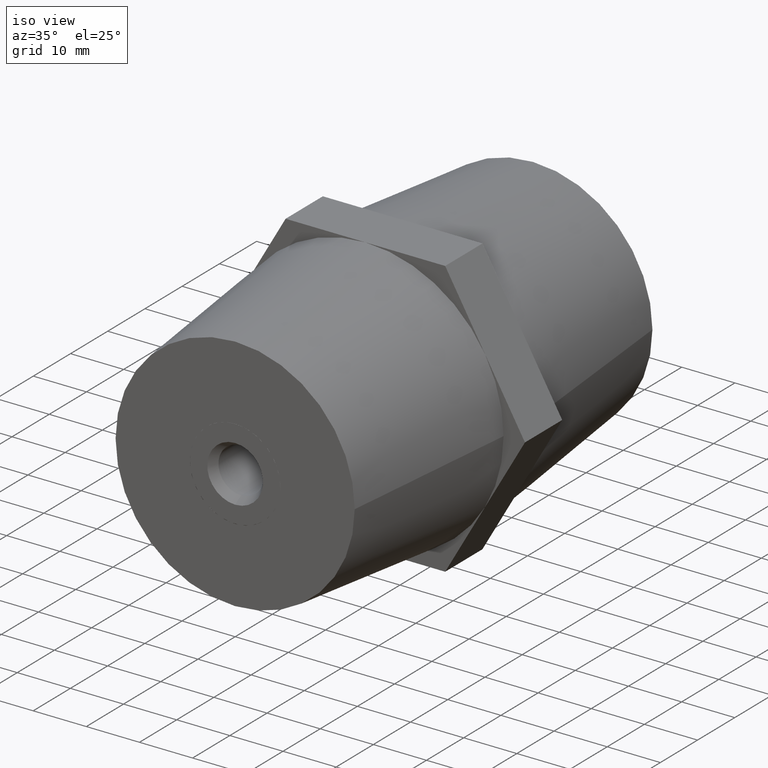
[diagram: clean part render]
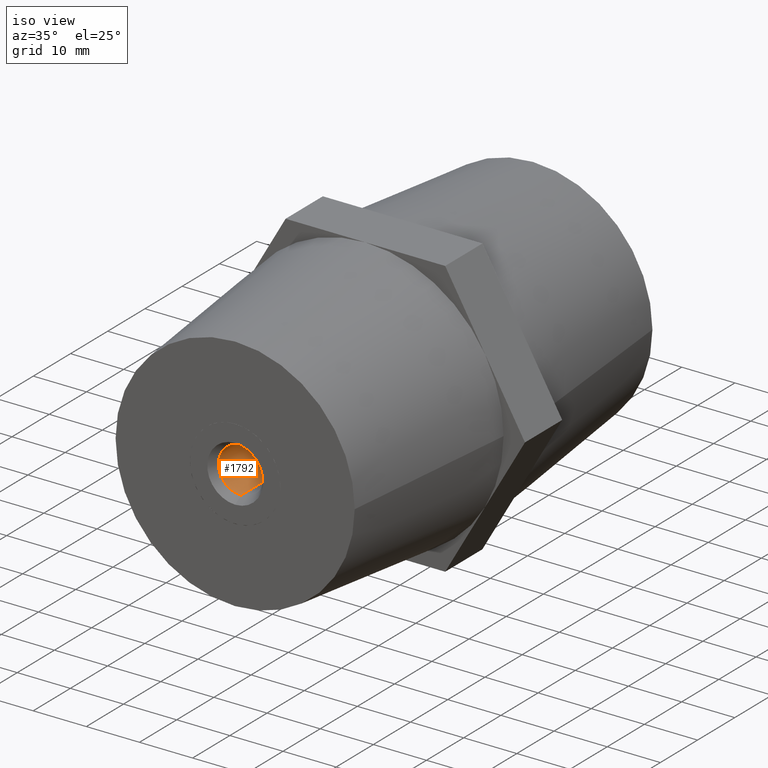
[diagram: same view with one face highlighted and labeled with its STEP entity id]
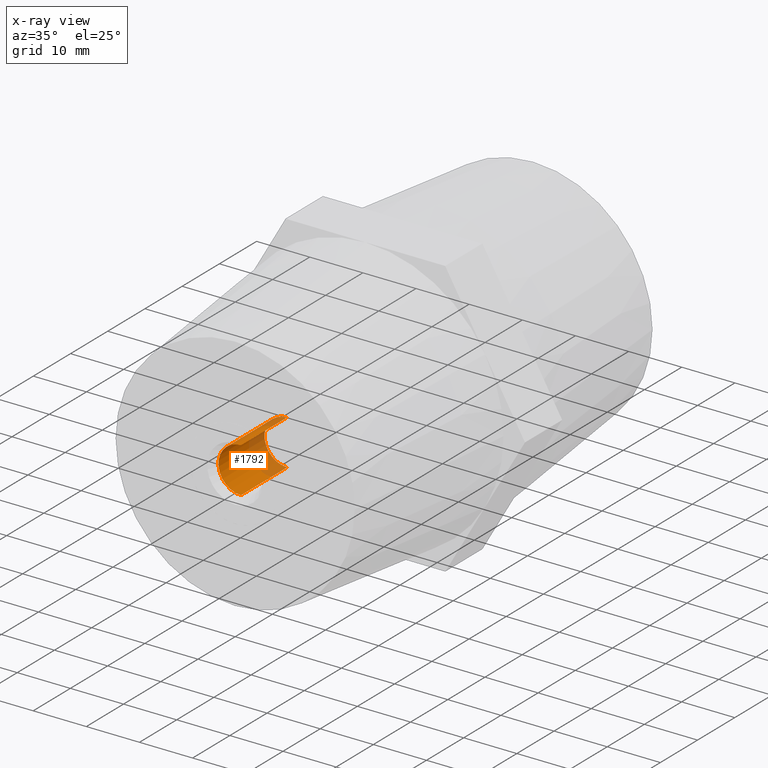
[diagram: x-ray of the same camera — body ghosted, the highlighted face saturated]
A machine part, iso view. The second image highlights one B-rep face of the part: STEP entity #1792.
The next image is the same camera in x-ray: the body ghosted, the highlighted face saturated — about 31% of this face is hidden behind the body in this view.
In plain terms, the highlighted cylindrical surface (edge-blend (fillet) strip) has radius 4.25 mm, axis along (0, -1, -0).
Its self-contained STEP definition (entity closure, byte-faithful):
#95 = VECTOR ( 'NONE', #3005, 1000.000000000000000 ) ;
#120 = AXIS2_PLACEMENT_3D ( 'NONE', #961, #2758, #1266 ) ;
#170 = DIRECTION ( 'NONE',  ( 0.0000000000000000000, 1.000000000000000000, 0.0000000000000000000 ) ) ;
#183 = ORIENTED_EDGE ( 'NONE', *, *, #1028, .T. ) ;
#191 = CARTESIAN_POINT ( 'NONE',  ( 0.0000000000000000000, 15.43031442288250000, 4.250000000000000000 ) ) ;
#252 = EDGE_CURVE ( 'NONE', #3318, #1661, #785, .T. ) ;
#361 = AXIS2_PLACEMENT_3D ( 'NONE', #1322, #3509, #2587 ) ;
#711 = ORIENTED_EDGE ( 'NONE', *, *, #1572, .F. ) ;
#785 = CIRCLE ( 'NONE', #361, 4.250000000000000000 ) ;
#839 = VERTEX_POINT ( 'NONE', #2811 ) ;
#864 = CARTESIAN_POINT ( 'NONE',  ( 0.0000000000000000000, 3.050000000000000300, 0.0000000000000000000 ) ) ;
#961 = CARTESIAN_POINT ( 'NONE',  ( 0.0000000000000000000, 17.00000000000000000, 0.0000000000000000000 ) ) ;
#1028 = EDGE_CURVE ( 'NONE', #3418, #3318, #2703, .T. ) ;
#1113 = CARTESIAN_POINT ( 'NONE',  ( 0.0000000000000000000, 17.00000000000000000, 4.250000000000000000 ) ) ;
#1221 = CARTESIAN_POINT ( 'NONE',  ( 5.204748896376250700E-016, 3.050000000000000300, -4.250000000000000000 ) ) ;
#1266 = DIRECTION ( 'NONE',  ( 0.0000000000000000000, 0.0000000000000000000, 1.000000000000000000 ) ) ;
#1322 = CARTESIAN_POINT ( 'NONE',  ( 0.0000000000000000000, 15.43031442288250000, 0.0000000000000000000 ) ) ;
#1356 = ORIENTED_EDGE ( 'NONE', *, *, #2991, .F. ) ;
#1392 = VECTOR ( 'NONE', #170, 1000.000000000000000 ) ;
#1532 = LINE ( 'NONE', #1113, #95 ) ;
#1572 = EDGE_CURVE ( 'NONE', #3418, #839, #1928, .T. ) ;
#1634 = AXIS2_PLACEMENT_3D ( 'NONE', #864, #3294, #3307 ) ;
#1661 = VERTEX_POINT ( 'NONE', #191 ) ;
#1792 = ADVANCED_FACE ( 'NONE', ( #3327 ), #3861, .F. ) ;
#1901 = ORIENTED_EDGE ( 'NONE', *, *, #252, .T. ) ;
#1928 = CIRCLE ( 'NONE', #1634, 4.250000000000000000 ) ;
#2042 = EDGE_LOOP ( 'NONE', ( #711, #183, #1901, #1356 ) ) ;
#2587 = DIRECTION ( 'NONE',  ( 0.0000000000000000000, 0.0000000000000000000, 1.000000000000000000 ) ) ;
#2703 = LINE ( 'NONE', #3883, #1392 ) ;
#2758 = DIRECTION ( 'NONE',  ( 0.0000000000000000000, 1.000000000000000000, 0.0000000000000000000 ) ) ;
#2811 = CARTESIAN_POINT ( 'NONE',  ( 0.0000000000000000000, 3.050000000000000300, 4.250000000000000000 ) ) ;
#2991 = EDGE_CURVE ( 'NONE', #839, #1661, #1532, .T. ) ;
#3005 = DIRECTION ( 'NONE',  ( 0.0000000000000000000, 1.000000000000000000, 0.0000000000000000000 ) ) ;
#3294 = DIRECTION ( 'NONE',  ( 0.0000000000000000000, 1.000000000000000000, 0.0000000000000000000 ) ) ;
#3307 = DIRECTION ( 'NONE',  ( 0.0000000000000000000, 0.0000000000000000000, 1.000000000000000000 ) ) ;
#3318 = VERTEX_POINT ( 'NONE', #3633 ) ;
#3327 = FACE_OUTER_BOUND ( 'NONE', #2042, .T. ) ;
#3418 = VERTEX_POINT ( 'NONE', #1221 ) ;
#3509 = DIRECTION ( 'NONE',  ( 0.0000000000000000000, 1.000000000000000000, 0.0000000000000000000 ) ) ;
#3633 = CARTESIAN_POINT ( 'NONE',  ( 5.204748896376250700E-016, 15.43031442288250000, -4.250000000000000000 ) ) ;
#3861 = CYLINDRICAL_SURFACE ( 'NONE', #120, 4.250000000000000000 ) ;
#3883 = CARTESIAN_POINT ( 'NONE',  ( 5.204748896376250700E-016, 17.00000000000000000, -4.250000000000000000 ) ) ;